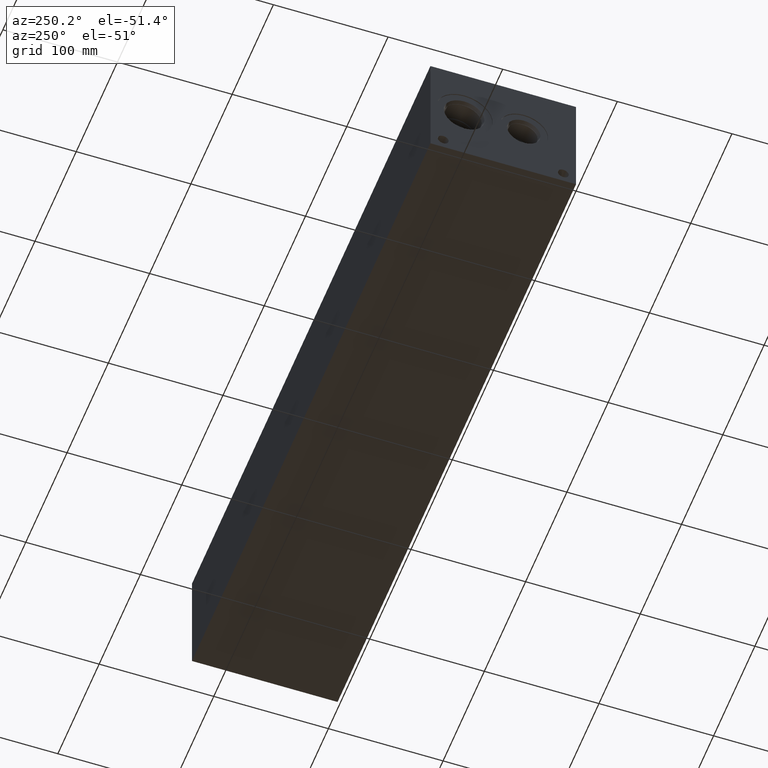
[diagram: clean part render]
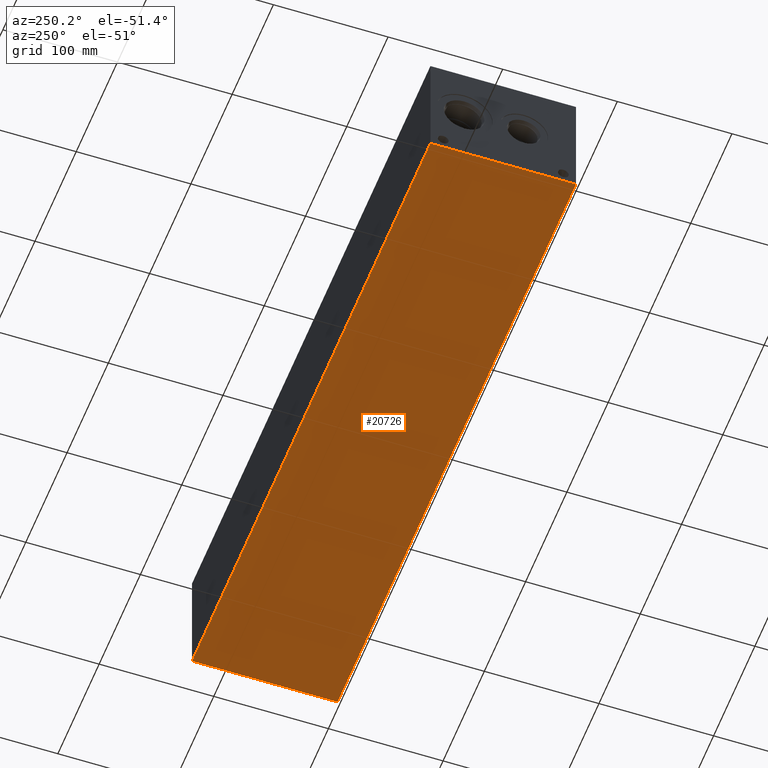
[diagram: same view with one face highlighted and labeled with its STEP entity id]
A machine part, auxiliary view. The second image highlights one B-rep face of the part: STEP entity #20726.
In plain terms, the highlighted planar face has unit normal (0, 0, 1).
Its self-contained STEP definition (entity closure, byte-faithful):
#3018=FACE_OUTER_BOUND('',#4323,.T.);
#4323=EDGE_LOOP('',(#18447,#18448,#18449,#18450));
#4357=LINE('',#27238,#6089);
#4726=LINE('',#29005,#6458);
#4785=LINE('',#29277,#6517);
#6054=LINE('',#36059,#7786);
#6089=VECTOR('',#22366,10.);
#6458=VECTOR('',#22859,10.);
#6517=VECTOR('',#22972,10.);
#7786=VECTOR('',#27157,10.);
#7810=VERTEX_POINT('',#27236);
#7811=VERTEX_POINT('',#27237);
#8323=VERTEX_POINT('',#29004);
#8381=VERTEX_POINT('',#29276);
#9838=EDGE_CURVE('',#7810,#7811,#4357,.T.);
#10399=EDGE_CURVE('',#7811,#8323,#4726,.T.);
#10482=EDGE_CURVE('',#8381,#7810,#4785,.T.);
#12685=EDGE_CURVE('',#8323,#8381,#6054,.T.);
#18447=ORIENTED_EDGE('',*,*,#9838,.F.);
#18448=ORIENTED_EDGE('',*,*,#10482,.F.);
#18449=ORIENTED_EDGE('',*,*,#12685,.F.);
#18450=ORIENTED_EDGE('',*,*,#10399,.F.);
#18986=PLANE('',#22304);
#20726=ADVANCED_FACE('',(#3018),#18986,.F.);
#22304=AXIS2_PLACEMENT_3D('',#36064,#27165,#27166);
#22366=DIRECTION('',(1.,0.,0.));
#22859=DIRECTION('',(0.,1.,0.));
#22972=DIRECTION('',(0.,-1.,0.));
#27157=DIRECTION('',(-1.,0.,0.));
#27165=DIRECTION('center_axis',(0.,0.,1.));
#27166=DIRECTION('ref_axis',(1.,0.,0.));
#27236=CARTESIAN_POINT('',(0.,0.,0.));
#27237=CARTESIAN_POINT('',(577.85,0.,0.));
#27238=CARTESIAN_POINT('',(0.,0.,0.));
#29004=CARTESIAN_POINT('',(577.85,127.,0.));
#29005=CARTESIAN_POINT('',(577.85,0.,0.));
#29276=CARTESIAN_POINT('',(0.,127.,0.));
#29277=CARTESIAN_POINT('',(0.,127.,0.));
#36059=CARTESIAN_POINT('',(577.85,127.,0.));
#36064=CARTESIAN_POINT('Origin',(288.925,63.5,0.));